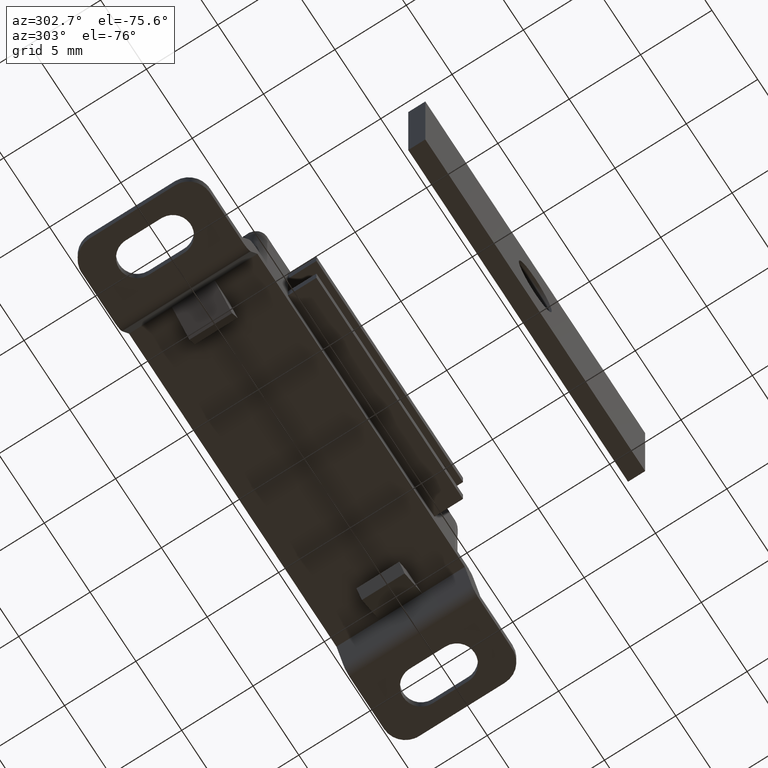
[diagram: clean part render]
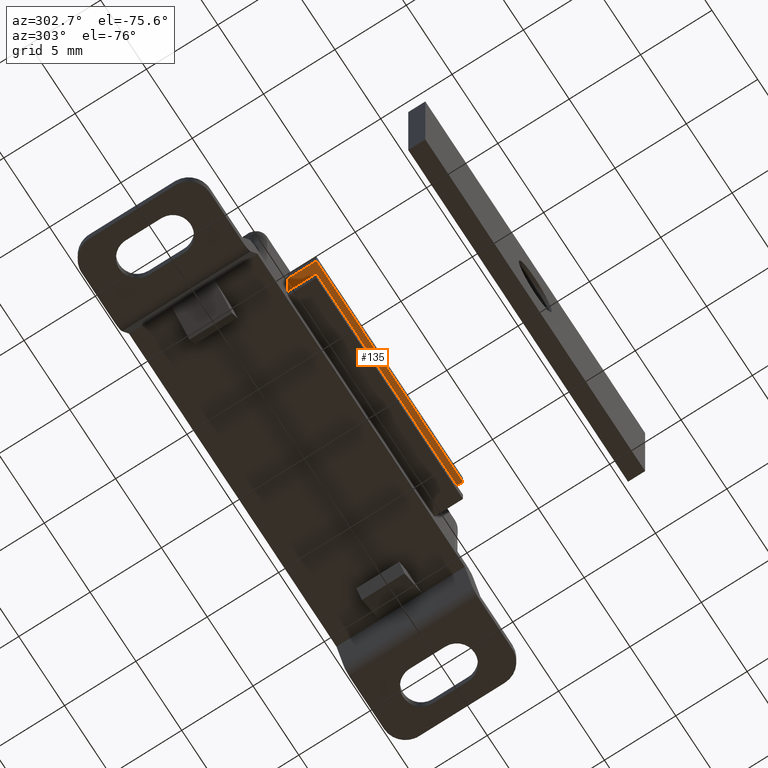
[diagram: same view with one face highlighted and labeled with its STEP entity id]
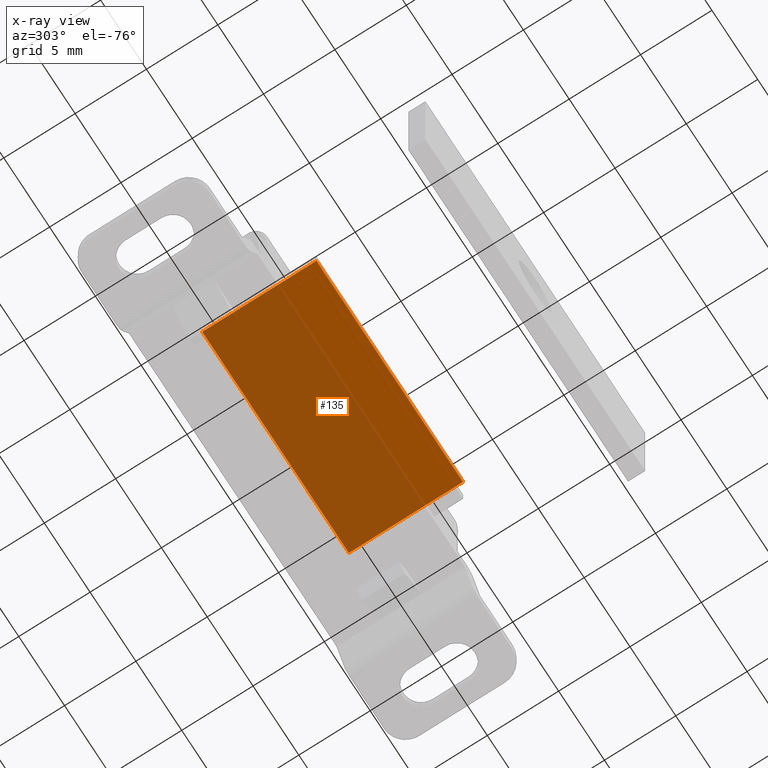
[diagram: x-ray of the same camera — body ghosted, the highlighted face saturated]
A machine part, auxiliary view. The second image highlights one B-rep face of the part: STEP entity #135.
The next image is the same camera in x-ray: the body ghosted, the highlighted face saturated — about 67% of this face is hidden behind the body in this view.
In plain terms, the highlighted face is a freeform B-spline surface patch.
Its self-contained STEP definition (entity closure, byte-faithful):
#49=CARTESIAN_POINT('',(-8.0,-11.0,7.500000000000000));
#50=VERTEX_POINT('',#49);
#65=CARTESIAN_POINT('',(-8.0,-3.000000000000115,7.500000000000000));
#66=VERTEX_POINT('',#65);
#72=CARTESIAN_POINT('',(-8.0,-3.000000000000115,7.500000000000000));
#73=CARTESIAN_POINT('',(-8.0,-11.0,7.500000000000000));
#74=QUASI_UNIFORM_CURVE('',1,(#72,#73),.UNSPECIFIED.,.F.,.U.);
#75=EDGE_CURVE('',#66,#50,#74,.T.);
#85=CARTESIAN_POINT('',(8.0,-11.0,7.500000000000000));
#86=VERTEX_POINT('',#85);
#94=CARTESIAN_POINT('',(8.0,-3.000000000000115,7.500000000000000));
#95=VERTEX_POINT('',#94);
#96=CARTESIAN_POINT('',(8.0,-3.000000000000115,7.500000000000000));
#97=CARTESIAN_POINT('',(8.0,-11.0,7.500000000000000));
#98=QUASI_UNIFORM_CURVE('',1,(#96,#97),.UNSPECIFIED.,.F.,.U.);
#99=EDGE_CURVE('',#95,#86,#98,.T.);
#116=CARTESIAN_POINT('',(8.799199968988896,-11.399599984494440,7.500000000000000));
#117=CARTESIAN_POINT('',(-8.799200398142338,-11.399599984494440,7.500000000000000));
#118=CARTESIAN_POINT('',(8.799199968988896,-2.600399800928952,7.500000000000000));
#119=CARTESIAN_POINT('',(-8.799200398142338,-2.600399800928952,7.500000000000000));
#120=B_SPLINE_SURFACE_WITH_KNOTS('',1,1,((#116,#118),(#117,#119)),.UNSPECIFIED.,.F.,.F.,.U.,(2,2),(2,2),(0.0,17.598400367131230),(0.0,8.799200183565491),.UNSPECIFIED.);
#121=ORIENTED_EDGE('',*,*,#75,.F.);
#122=CARTESIAN_POINT('',(8.0,-3.000000000000115,7.500000000000000));
#123=CARTESIAN_POINT('',(-8.0,-3.000000000000115,7.500000000000000));
#124=QUASI_UNIFORM_CURVE('',1,(#122,#123),.UNSPECIFIED.,.F.,.U.);
#125=EDGE_CURVE('',#95,#66,#124,.T.);
#126=ORIENTED_EDGE('',*,*,#125,.F.);
#127=ORIENTED_EDGE('',*,*,#99,.T.);
#128=CARTESIAN_POINT('',(8.0,-11.0,7.500000000000000));
#129=CARTESIAN_POINT('',(-8.0,-11.0,7.500000000000000));
#130=QUASI_UNIFORM_CURVE('',1,(#128,#129),.UNSPECIFIED.,.F.,.U.);
#131=EDGE_CURVE('',#86,#50,#130,.T.);
#132=ORIENTED_EDGE('',*,*,#131,.T.);
#133=EDGE_LOOP('',(#121,#126,#127,#132));
#134=FACE_OUTER_BOUND('',#133,.T.);
#135=ADVANCED_FACE('',(#134),#120,.T.);